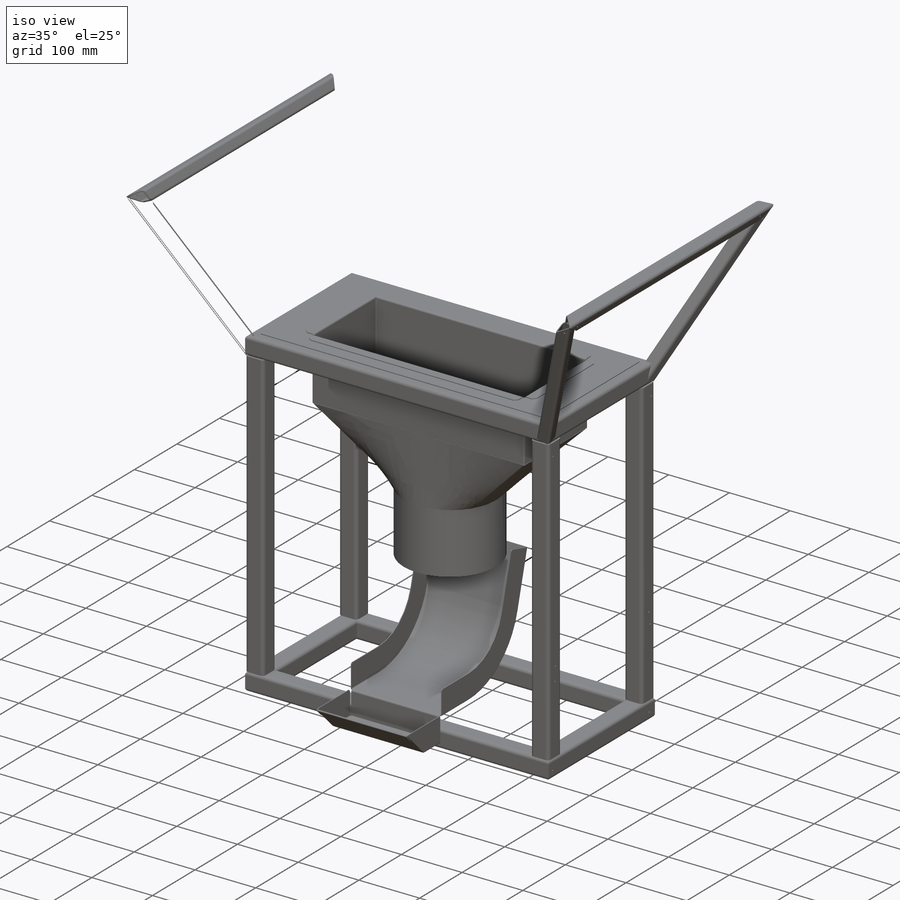
[diagram: iso view]
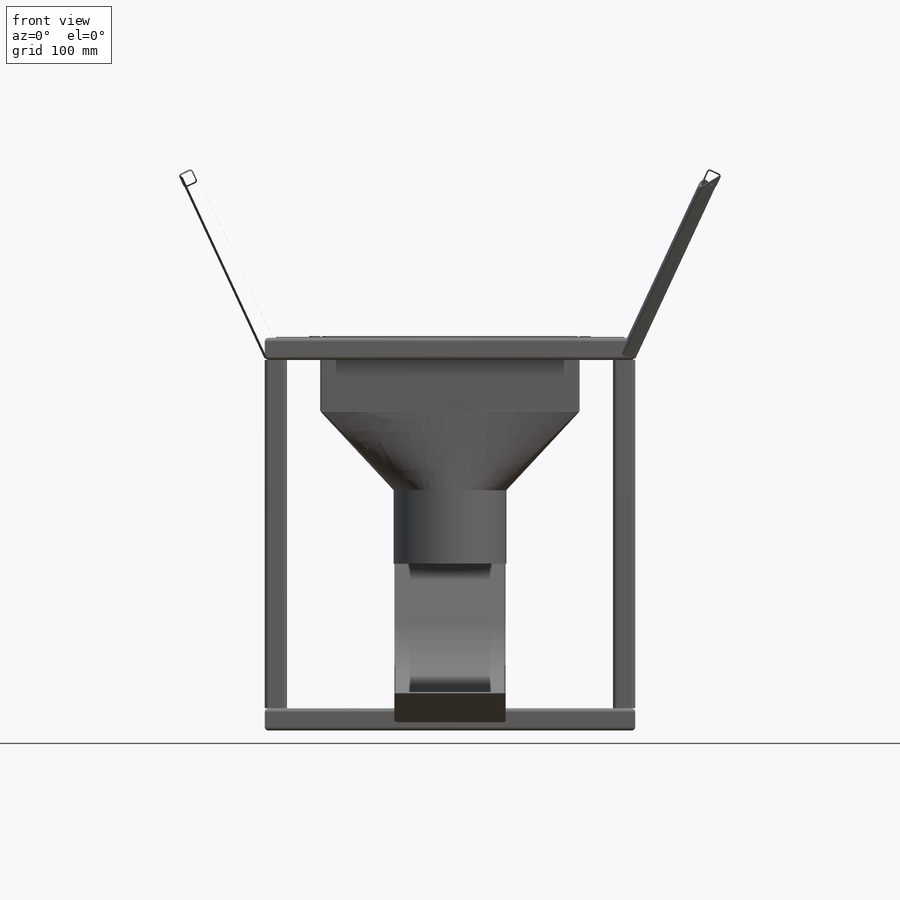
[diagram: front view]
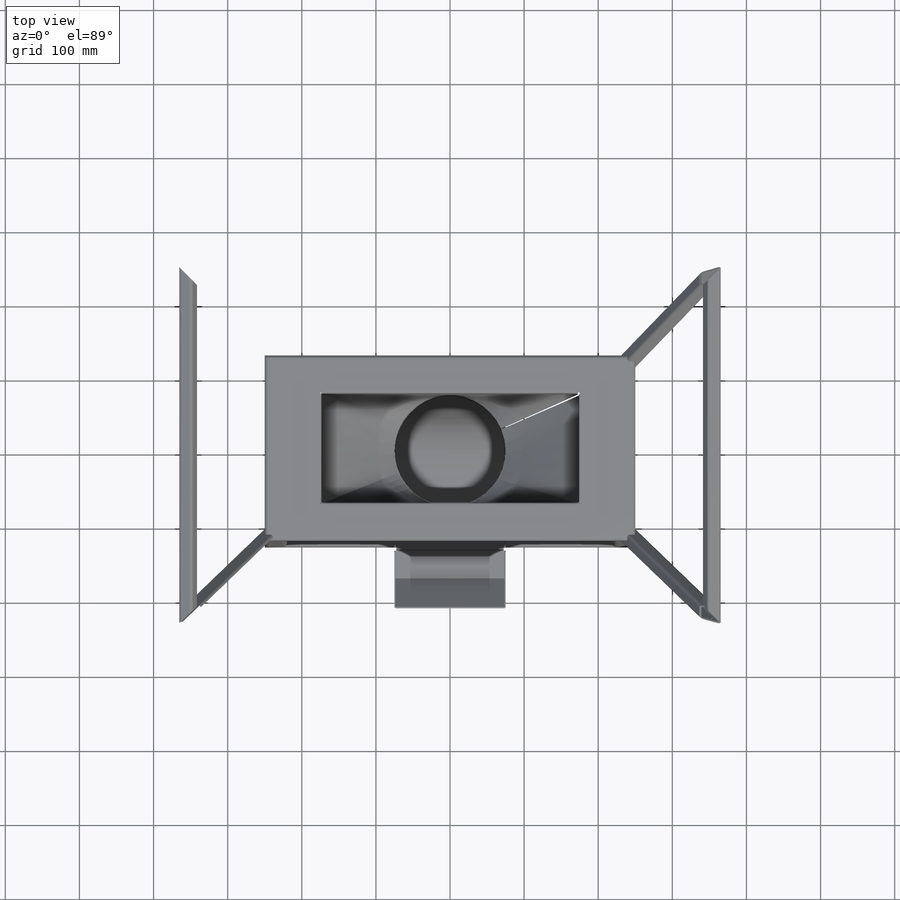
[diagram: top view]
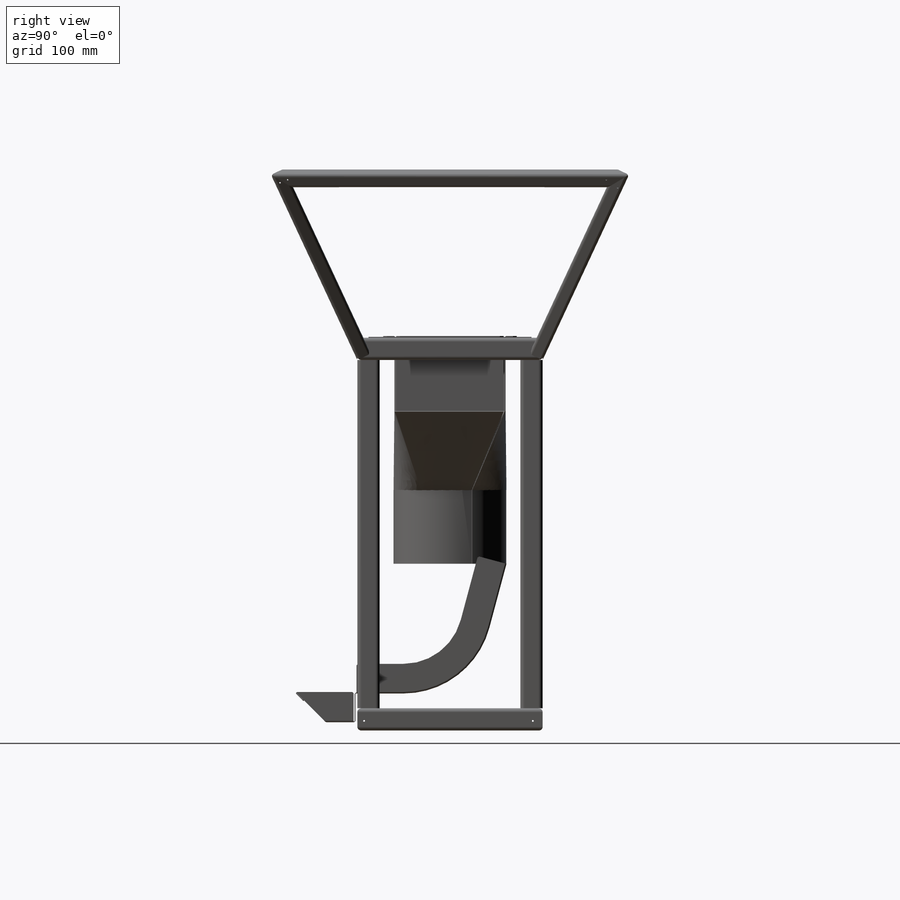
[diagram: right view]
SOLIDWORKS PART (.sldprt)
format: sldprt  version: not decoded by parser v0  size: 8,448,512 bytes
history: native  units: mm
features: sketch x114, sheet_metal_op x93, mirror x43, move_body x43, hole x9, material x5, plane x4, pattern_circular x4, extrude x3, cut_extrude x3 + 29 further entries (+12 scaffold rows collapsed; 43 parser-record rows omitted)
feature tree (405):
  scaffold x12  (default folders/planes/origin — collapsed)
  material  "Copper"
  material  "Copper"
  material  "Copper"
  material  "Copper"
  material  "Plain Carbon Steel"
  "Cut-List-Item2"
  "Cut-List-Item3"
  "Cut-List-Item4"
  "Cut-List-Item5"
  "Cut-List-Item6"
  "Cut-List-Item7"
  "Cut-List-Item8"
  "Cut-List-Item9"
  "Cut-List-Item10"
  "Cut-List-Item11"
  "Cut-List-Item12"
  "Cut-List-Item13"
  "Cut-List-Item14"
  "Cut-List-Item15"
  "Cut-List-Item16"
  "Cut-List-Item17"
  "Cut-List-Item18"
  "Cut-List-Item19"
  "Cut-List-Item20"
  "Cut-List-Item21"
  "Cut-List-Item22"
  "Cut-List-Item23"
  "Cut-List-Item24"
  "Cut-List-Item25"
  "Cut-List-Item26"
  sketch  "Sketch1"  dims[D1=250.0mm D2=500.0mm]
  extrude  "Boss-Extrude1"  Depth=500mm
  sketch  "Sketch2"  dims[D1=0.0mm]
  extrude  "Boss-Extrude2"  Depth=250mm
  sketch  "3DSketch1"
  plane  "Plane1"
  sketch  "Sketch11"  dims[c1.D1=6.35mm c1.D2=6.35mm c1.D3=6.35mm c1.D4=6.35mm c1.D5=6.35mm c1.D6=6.35mm c1.D7=6.35mm c1.D8=6.35mm c2.D1=6.604mm c2.D2=6.604mm c2.D3=6.604mm c2.D4=6.604mm c3.D1=5.2mm c3.Thickness=2.6mm c3.D4=12.9032mm c3.D5=12.9286mm c3.V_leg=30.0mm c3.H_leg=20.0mm c4.D4=50.3428mm c4.D5=50.8508mm c5.D4=~41.274964mm c5.D5=~41.274964mm]
  plane  "Plane2"
  sketch  "Sketch12"  dims[c1.D1=6.35mm c1.D2=6.35mm c1.D3=6.35mm c1.D4=6.35mm c1.D5=6.35mm c1.D6=6.35mm c1.D7=6.35mm c1.D8=6.35mm c2.D1=6.604mm c2.D2=6.604mm c2.D3=6.604mm c2.D4=6.604mm c3.D1=4.0mm c3.Thickness=2.0mm c3.D4=12.9032mm c3.D5=12.9286mm c3.V_leg=20.0mm c3.H_leg=20.0mm c4.D4=50.3428mm c4.D5=50.8508mm c5.D4=~41.274964mm c5.D5=~41.274964mm c5.D1=1.27mm c5.D2=0.5 c5.D3=0.0mm c5.D6=500.0mm c6.D1=0.0mm c6.D4=90.0deg c6.D5=1.0 c6.D8=0.0mm c6.D9=0.0mm c6.SharpBend2=0.0 c7.D1=0.0mm c7.D4=90.0deg c7.D5=2.0 c7.D8=0.0mm c7.D9=0.0mm c8.D1=1.27mm c8.SharpBend3=0.0 c9.D1=0.0mm c9.D4=~79.711415deg c9.D5=1.0 c9.D8=0.0mm c9.D9=0.0mm c10.D1=1.27mm]
  pattern_circular  "CirPattern1"  Count=1 Angle=79.711415deg DerivedBend1=0
  sketch  "Sketch21"
  sheet_metal_op  "Base-Flange1"
  sketch  "Sketch24"  dims[D1=150.0mm D2=350.0mm]
  cut_extrude  "Cut-Extrude1"  [1 undecoded]
  extrude  "Boss-Extrude3"  [1 undecoded]
  sketch  "Sketch24<2>"  dims[c1.D1=100.0mm c1.SharpBend6=0.0 c2.D1=0.0mm c2.D4=90.0deg c2.D5=1.0 c2.D8=0.0mm c2.D9=0.0mm c2.SharpBend7=0.0 c3.D1=0.0mm c3.D4=90.0deg c3.D5=2.0 c3.D8=0.0mm c3.D9=0.0mm c3.SharpBend8=0.0 c4.D1=0.0mm c4.D4=90.0deg c4.D5=3.0 c4.D8=0.0mm c4.D9=0.0mm c5.D1=1.27mm]
  sketch  "Sketch35"
  sketch  "Sketch36"
  sketch  "Sketch37"
  sketch  "Sketch38"  dims[c1.EdgeBend1=0.0 c1.D1=1.27mm c1.D4=90.0deg c1.D5=4.0 c1.D8=~0.60706mm c1.D9=~0.60706mm c1.EdgeBend2=0.0 c2.D1=1.27mm c2.D4=90.0deg c2.D5=5.0 c2.D8=~0.60706mm c2.D9=~0.60706mm c2.EdgeBend3=0.0 c3.D1=1.27mm c3.D4=90.0deg c3.D5=6.0 c3.D8=~0.60706mm c3.D9=~0.60706mm c3.EdgeBend4=0.0 c4.D1=1.27mm c4.D4=90.0deg c4.D5=7.0 c4.D8=~0.60706mm c4.D9=~0.60706mm c5.D1=1.27mm c5.D2=500.0mm c5.D3=0.0mm c5.D6=10.0mm c5.D7=15.0mm c5.D8=1.0mm c6.D1=5.0mm c7.D1=5.0mm c8.D1=5.0mm c8.D7=5.0mm]
  sketch  "Sketch39"
  plane  "Plane3"  Offset=325mm
  sketch  "Sketch40"  dims[c1.D1=150.0mm c2.D1=1000.0mm c2.D4=~57.29578deg c2.D5=1.0 c2.D8=~0.60706mm c2.D9=~0.60706mm c3.D1=0.0mm]
  sketch  "Sketch40<2>"  dims[c1.D1=75.0mm c1.D4=~359.434915deg c1.D5=1.0 c1.D8=~0.60706mm c1.D9=~0.60706mm c2.D1=1.27mm c2.D2=100.0mm]
  sketch  "Sketch45"  dims[D1=40.0mm D2=150.0mm D3=50.0mm]
  cut_extrude  "Cut-Extrude2"  [1 undecoded]
  sketch  "Sketch46"  dims[c1.D2=120.0mm c1.D1=~148.213346mm c2.D1=105.0deg]
  sketch  "Sketch47"  dims[D1=1.27mm D4=90.0deg D5=1.0 D8=~0.60706mm D9=~0.60706mm]
  sheet_metal_op  "Sweptbend1_2"
  sheet_metal_op  "Sweptbend2_1"
  plane  "Plane4"
  sketch  "Sketch50"  dims[c1.D1=40.0mm c1.D2=40.0mm c1.D3=40.0mm c2.D3=135.0deg]
  pattern_circular  "Miterbend1"  Count=4 Angle=90deg
  pattern_circular  "Miterbend2"  Count=5 Angle=45deg
  pattern_circular  "Miterbend3"  Count=6 Angle=90deg
  sketch  "Sketch55"
  sketch  "Sketch56"  dims[c1.EdgeBend5=0.0 c1.D1=1.27mm c1.D4=90.0deg c1.D5=7.0 c1.D8=~0.60706mm c1.D9=~0.60706mm c1.EdgeBend6=0.0 c2.D1=1.27mm c2.D4=90.0deg c2.D5=8.0 c2.D8=~0.60706mm c2.D9=~0.60706mm c3.D1=1.27mm c3.D2=500.0mm c3.D3=0.0mm c3.D6=10.0mm c3.D7=~39.644392mm c3.D8=1.0mm c4.D1=2000.0mm]
  sketch  "Sketch58"  dims[c1.HemBend1=0.0 c1.D1=0.05mm c1.D4=180.0deg c1.D5=9.0 c1.D8=~0.60706mm c1.D9=~0.60706mm c2.D1=0.05mm c2.D7=15.0mm c2.D8=0.1mm c2.D9=1.0mm c3.D1=2.0mm c4.D1=2.0mm c5.D1=2.0mm c5.D7=5.0mm]
  sketch  "Sketch59"
  cut_extrude  "Cut-Extrude3"  [1 undecoded]
  sketch  "Sketch84"
  hole  "CSK for M2 Flat Head Machine Screw1"  Diameter=2.4mm Depth=8mm
  sketch  "3DSketch2"
  sketch  "Sketch86"  dims[hole-wizard template sketch: 39 standard entries collapsed; hole parameters kept: c13.Hole Dia.=2.4mm c13.Hole Depth=8.0mm c13.Near C'Sink Dia.=4.4mm c13.D4=~33.297463mm c13.Near C'Sink Angle=90.0deg c14.D5=~14.816244mm c14.Drill Angle=118.0deg]
  mirror  "Mirror1"
  move_body  "Body-Move/Copy1"
  hole  "Body-Move/Copy2"  [1 undecoded]
  hole  "Body-Move/Copy3"  [1 undecoded]
  hole  "Body-Move/Copy4"  [1 undecoded]
  hole  "Body-Move/Copy5"  [1 undecoded]
  hole  "Body-Move/Copy6"  [1 undecoded]
  hole  "Body-Move/Copy7"  [1 undecoded]
  hole  "Body-Move/Copy8"  [1 undecoded]
  hole  "Body-Move/Copy9"  [1 undecoded]
  sketch  "Bend-Lines1"
  sketch  "Bounding-Box1"
  sheet_metal_op  "Sheet-Metal(32)"
  "Flat-Pattern(32)"
  sketch  "Bend-Lines2"
  sketch  "Bounding-Box2"
  sheet_metal_op  "Flatten-<SharpBend2>1"
  parser-record x43  (decoder bookkeeping rows leaked as tree rows — omitted from the tree; the rows remain in map.json)
  mirror  "Sheet-Metal(33)"
  move_body  "Flat-Pattern(33)"
  sketch  "Bend-Lines3"
  sketch  "Bounding-Box3"
  sheet_metal_op  "Flatten-<SharpBend3>1"
  mirror  "Sheet-Metal(34)"
  move_body  "Flat-Pattern(34)"
  sketch  "Bend-Lines4"
  sketch  "Bounding-Box4"
  sheet_metal_op  "Flatten-<DerivedBend1>1"
  mirror  "Sheet-Metal(35)"
  move_body  "Flat-Pattern(35)"
  sketch  "Bend-Lines5"
  sketch  "Bounding-Box5"
  mirror  "Sheet-Metal(36)"
  move_body  "Flat-Pattern(35)"
  sketch  "Bend-Lines5"
  sketch  "Bounding-Box5"
  mirror  "Sheet-Metal(38)"
  move_body  "Flat-Pattern(38)"
  sketch  "Bend-Lines6"
  sketch  "Bounding-Box6"
  sheet_metal_op  "Flatten-<SharpBend6>1"
  sheet_metal_op  "Flatten-<SharpBend7>1"
  sheet_metal_op  "Flatten-<SharpBend8>1"
  mirror  "Sheet-Metal(39)"
  move_body  "Flat-Pattern(38)"
  sketch  "Bend-Lines6"
  sketch  "Bounding-Box6"
  sheet_metal_op  "Flatten-<SharpBend6>1"
  sheet_metal_op  "Flatten-<SharpBend7>1"
  sheet_metal_op  "Flatten-<SharpBend8>1"
  sheet_metal_op  "Flatten-<EdgeBend1>1"
  sheet_metal_op  "Flatten-<EdgeBend2>1"
  sheet_metal_op  "Flatten-<EdgeBend3>1"
  sheet_metal_op  "Flatten-<EdgeBend4>1"
  mirror  "Sheet-Metal(40)"
  move_body  "Flat-Pattern(40)"
  sketch  "Bend-Lines7"
  sketch  "Bounding-Box7"
  mirror  "Sheet-Metal(41)"
  move_body  "Flat-Pattern(41)"
  sketch  "Bend-Lines8"
  sketch  "Bounding-Box8"
  sheet_metal_op  "Flatten-<BaseBend1>1"
  mirror  "Sheet-Metal(42)"
  move_body  "Flat-Pattern(32)"
  sketch  "Bend-Lines2"
  sketch  "Bounding-Box2"
  sheet_metal_op  "Flatten-<SharpBend1>1"
  sheet_metal_op  "Flatten-<SharpBend2>1"
  mirror  "Sheet-Metal(43)"
  move_body  "Flat-Pattern(43)"
  sketch  "Bend-Lines9"
  sketch  "Bounding-Box9"
  sheet_metal_op  "Flatten-<Sweptbend1_1>1"
  sheet_metal_op  "Flatten-<Sweptbend1_2>1"
  sheet_metal_op  "Flatten-<Sweptbend2_1>1"
  sheet_metal_op  "Flatten-<Miterbend1>1"
  sheet_metal_op  "Flatten-<Miterbend2>1"
  sheet_metal_op  "Flatten-<Miterbend3>1"
  mirror  "Sheet-Metal(44)"
  move_body  "Flat-Pattern(43)"
  sketch  "Bend-Lines9"
  sketch  "Bounding-Box9"
  sheet_metal_op  "Flatten-<Sweptbend1_1>1"
  sheet_metal_op  "Flatten-<Sweptbend1_2>1"
  sheet_metal_op  "Flatten-<Sweptbend2_1>1"
  sheet_metal_op  "Flatten-<Miterbend1>1"
  sheet_metal_op  "Flatten-<Miterbend2>1"
  sheet_metal_op  "Flatten-<Miterbend3>1"
  sheet_metal_op  "Flatten-<EdgeBend5>1"
  sheet_metal_op  "Flatten-<EdgeBend6>1"
  sheet_metal_op  "Flatten-<HemBend1>1"
  mirror  "Sheet-Metal(45)"
  move_body  "Flat-Pattern(32)"
  sketch  "Bend-Lines10"
  sketch  "Bounding-Box10"
  sheet_metal_op  "Flatten-<SharpBend2>2"
  sheet_metal_op  "Flatten-<SharpBend1>2"
  mirror  "Sheet-Metal(48)"
  move_body  "Flat-Pattern(48)"
  sketch  "Bend-Lines11"
  sketch  "Bounding-Box11"
  "Flatten-<Freeform Bend1>2"
  mirror  "Sheet-Metal(49)"
  move_body  "Flat-Pattern(49)"
  sketch  "Bend-Lines12"
  sketch  "Bounding-Box12"
  sheet_metal_op  "Flatten-<Sweptbend2_1>2"
  sheet_metal_op  "Flatten-<Sweptbend1_2>2"
  sheet_metal_op  "Flatten-<Sweptbend1_1>2"
  sheet_metal_op  "Flatten-<Miterbend1>2"
  sheet_metal_op  "Flatten-<Miterbend2>2"
  sheet_metal_op  "Flatten-<Miterbend3>2"
  sheet_metal_op  "Flatten-<EdgeBend5>2"
  sheet_metal_op  "Flatten-<EdgeBend6>2"
  sheet_metal_op  "Flatten-<HemBend1>2"
  mirror  "Sheet-Metal(50)"
  move_body  "Flat-Pattern(50)"
  sketch  "Bend-Lines13"
  sketch  "Bounding-Box13"
  sheet_metal_op  "Flatten-<BaseBend1>2"
  mirror  "Sheet-Metal(51)"
  move_body  "Flat-Pattern(51)"
  sketch  "Bend-Lines14"
  sketch  "Bounding-Box14"
  sheet_metal_op  "Flatten-<BaseBend1>3"
  mirror  "Sheet-Metal(52)"
  move_body  "Flat-Pattern(52)"
  sketch  "Bend-Lines15"
  sketch  "Bounding-Box15"
  sheet_metal_op  "Flatten-<BaseBend1>4"
  mirror  "Sheet-Metal(53)"
  move_body  "Flat-Pattern(53)"
  sketch  "Bend-Lines16"
  sketch  "Bounding-Box16"
  sheet_metal_op  "Flatten-<BaseBend1>5"
  mirror  "Sheet-Metal(54)"
  move_body  "Flat-Pattern(54)"
  sketch  "Bend-Lines17"
  sketch  "Bounding-Box17"
  sheet_metal_op  "Flatten-<BaseBend1>6"
  mirror  "Sheet-Metal(55)"
  move_body  "Flat-Pattern(55)"
  sketch  "Bend-Lines18"
  sketch  "Bounding-Box18"
  sheet_metal_op  "Flatten-<BaseBend1>7"
  mirror  "Sheet-Metal(56)"
  move_body  "Flat-Pattern(56)"
  sketch  "Bend-Lines19"
  sketch  "Bounding-Box19"
  sheet_metal_op  "Flatten-<BaseBend1>8"
  mirror  "Sheet-Metal(57)"
  move_body  "Flat-Pattern(57)"
  sketch  "Bend-Lines20"
  sketch  "Bounding-Box20"
  sheet_metal_op  "Flatten-<BaseBend1>9"
  mirror  "Sheet-Metal(58)"
  move_body  "Flat-Pattern(58)"
  sketch  "Bend-Lines21"
  sketch  "Bounding-Box21"
  "Flatten-<Freeform Bend1>3"
  mirror  "Sheet-Metal(59)"
  move_body  "Flat-Pattern(59)"
  sketch  "Bend-Lines22"
  sketch  "Bounding-Box22"
  sheet_metal_op  "Flatten-<SharpBend2>3"
  sheet_metal_op  "Flatten-<SharpBend1>3"
  mirror  "Sheet-Metal(60)"
  move_body  "Flat-Pattern(60)"
  sketch  "Bend-Lines23"
  sketch  "Bounding-Box23"
  sheet_metal_op  "Flatten-<SharpBend2>4"
  sheet_metal_op  "Flatten-<SharpBend1>4"
  mirror  "Sheet-Metal(61)"
  move_body  "Flat-Pattern(59)"
  sketch  "Bend-Lines22"
  sketch  "Bounding-Box22"
  sheet_metal_op  "Flatten-<SharpBend2>3"
  sheet_metal_op  "Flatten-<SharpBend1>3"
  mirror  "Sheet-Metal(62)"
  move_body  "Flat-Pattern(60)"
  sketch  "Bend-Lines23"
  sketch  "Bounding-Box23"
  sheet_metal_op  "Flatten-<SharpBend2>4"
  sheet_metal_op  "Flatten-<SharpBend1>4"
  mirror  "Sheet-Metal(63)"
  move_body  "Flat-Pattern(33)"
  sketch  "Bend-Lines3"
  sketch  "Bounding-Box3"
  sheet_metal_op  "Flatten-<SharpBend3>1"
  mirror  "Sheet-Metal(64)"
  move_body  "Flat-Pattern(43)"
  sketch  "Bend-Lines9"
  sketch  "Bounding-Box9"
  sheet_metal_op  "Flatten-<Sweptbend1_1>1"
  sheet_metal_op  "Flatten-<Sweptbend1_2>1"
  sheet_metal_op  "Flatten-<Sweptbend2_1>1"
  sheet_metal_op  "Flatten-<Miterbend1>1"
  sheet_metal_op  "Flatten-<Miterbend2>1"
  sheet_metal_op  "Flatten-<Miterbend3>1"
  sheet_metal_op  "Flatten-<EdgeBend5>1"
  sheet_metal_op  "Flatten-<EdgeBend6>1"
  sheet_metal_op  "Flatten-<HemBend1>1"
  mirror  "Sheet-Metal(65)"
  move_body  "Flat-Pattern(41)"
  sketch  "Bend-Lines8"
  sketch  "Bounding-Box8"
  sheet_metal_op  "Flatten-<BaseBend1>1"
  mirror  "Sheet-Metal(66)"
  move_body  "Flat-Pattern(40)"
  sketch  "Bend-Lines7"
  sketch  "Bounding-Box7"
  "Flatten-<Freeform Bend1>1"
  mirror  "Sheet-Metal(67)"
  move_body  "Flat-Pattern(35)"
  sketch  "Bend-Lines5"
  sketch  "Bounding-Box5"
  mirror  "Sheet-Metal(68)"
  move_body  "Flat-Pattern(38)"
  sketch  "Bend-Lines6"
  sketch  "Bounding-Box6"
  sheet_metal_op  "Flatten-<SharpBend6>1"
  sheet_metal_op  "Flatten-<SharpBend7>1"
  sheet_metal_op  "Flatten-<SharpBend8>1"
  sheet_metal_op  "Flatten-<EdgeBend1>1"
  sheet_metal_op  "Flatten-<EdgeBend2>1"
  sheet_metal_op  "Flatten-<EdgeBend3>1"
  sheet_metal_op  "Flatten-<EdgeBend4>1"
  mirror  "Sheet-Metal(69)"
  move_body  "Flat-Pattern(34)"
  sketch  "Bend-Lines4"
  sketch  "Bounding-Box4"
  sheet_metal_op  "Flatten-<DerivedBend1>1"
  mirror  "Sheet-Metal(78)"
  move_body  "Flat-Pattern(33)"
  sketch  "Bend-Lines3"
  sketch  "Bounding-Box3"
  sheet_metal_op  "Flatten-<SharpBend3>1"
  mirror  "Sheet-Metal(79)"
  move_body  "Flat-Pattern(34)"
  sketch  "Bend-Lines4"
  sketch  "Bounding-Box4"
  sheet_metal_op  "Flatten-<DerivedBend1>1"
  mirror  "Sheet-Metal(80)"
  move_body  "Flat-Pattern(59)"
  sketch  "Bend-Lines22"
  sketch  "Bounding-Box22"
  sheet_metal_op  "Flatten-<SharpBend2>3"
  sheet_metal_op  "Flatten-<SharpBend1>3"
  mirror  "Sheet-Metal(81)"
  move_body  "Flat-Pattern(60)"
  sketch  "Bend-Lines23"
  sketch  "Bounding-Box23"
  sheet_metal_op  "Flatten-<SharpBend2>4"
  sheet_metal_op  "Flatten-<SharpBend1>4"
  mirror  "Sheet-Metal(90)"
  move_body  "Flat-Pattern(33)"
  sketch  "Bend-Lines3"
  sketch  "Bounding-Box3"
  sheet_metal_op  "Flatten-<SharpBend3>1"
  mirror  "Sheet-Metal(91)"
  move_body  "Flat-Pattern(34)"
  sketch  "Bend-Lines4"
  sketch  "Bounding-Box4"
  sheet_metal_op  "Flatten-<DerivedBend1>1"
  mirror  "Sheet-Metal(92)"
  move_body  "Flat-Pattern(59)"
  sketch  "Bend-Lines22"
  sketch  "Bounding-Box22"
  sheet_metal_op  "Flatten-<SharpBend2>3"
  sheet_metal_op  "Flatten-<SharpBend1>3"
  mirror  "Sheet-Metal(93)"
  move_body  "Flat-Pattern(60)"
  sketch  "Bend-Lines23"
  sketch  "Bounding-Box23"
  sheet_metal_op  "Flatten-<SharpBend2>4"
  sheet_metal_op  "Flatten-<SharpBend1>4"
decode coverage: 23 of 312 modeling features carry decoded parameters; 29 rows unclassified (native names shown)
note: ~ marks probable driven/reference dimensions
note: 12 parameter values undecoded
summary: no parameter record found for 12 features
note: suppression state not decoded; provenance and decode notes live in map.json
